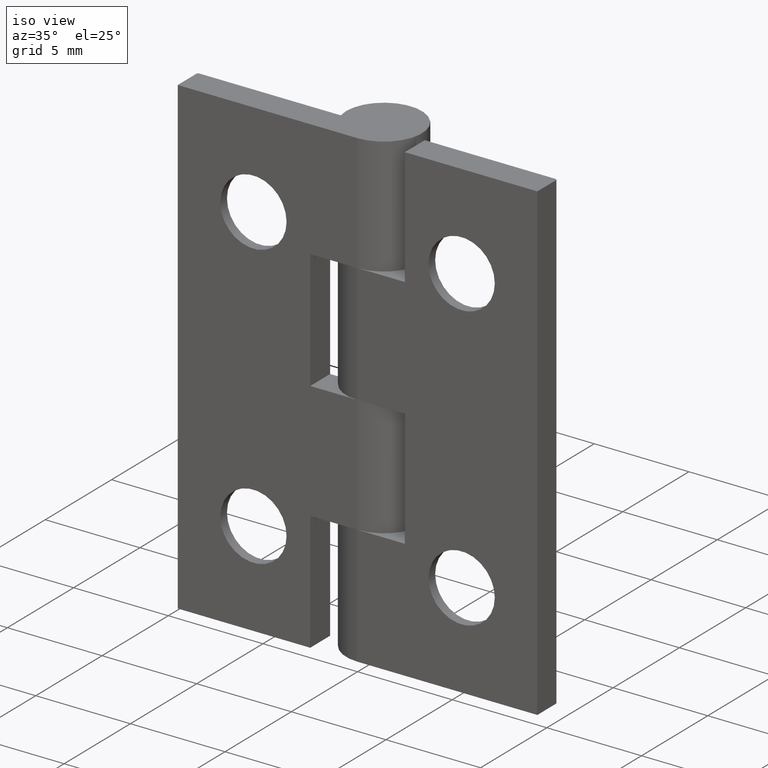
[diagram: clean part render]
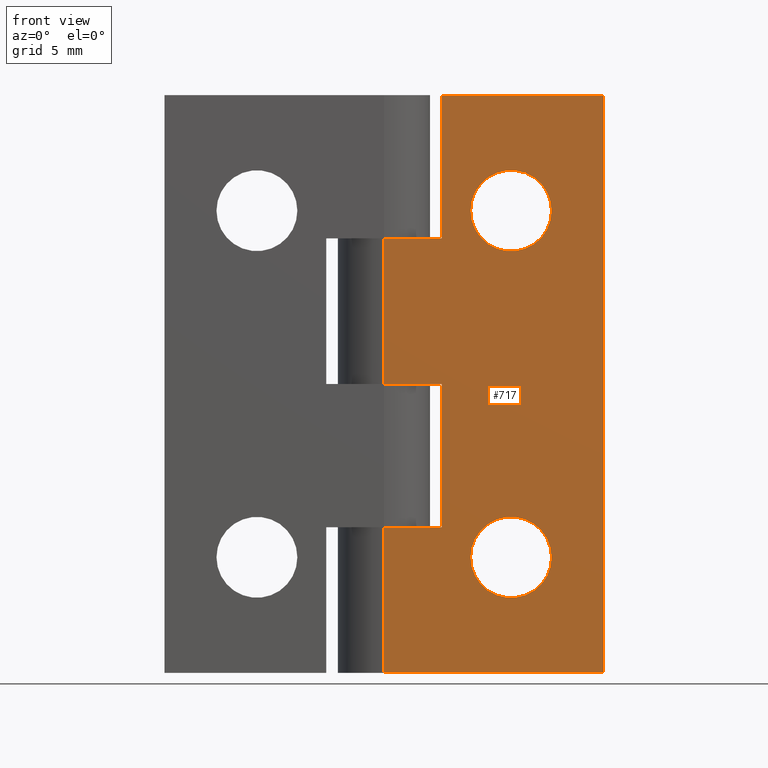
[diagram: tour spotlight — one face highlighted and labeled with its STEP entity id]
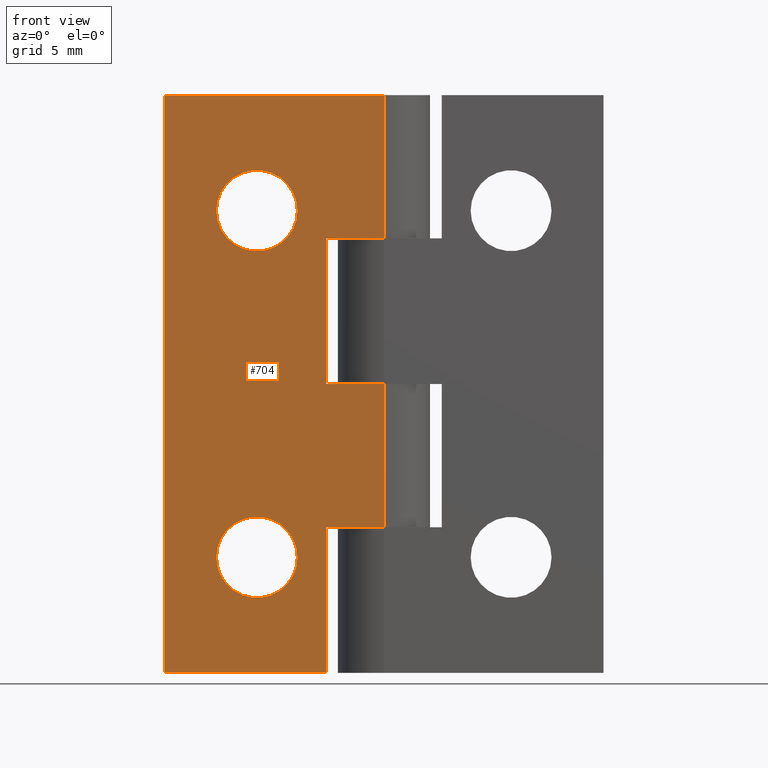
[diagram: tour spotlight — one face highlighted and labeled with its STEP entity id]
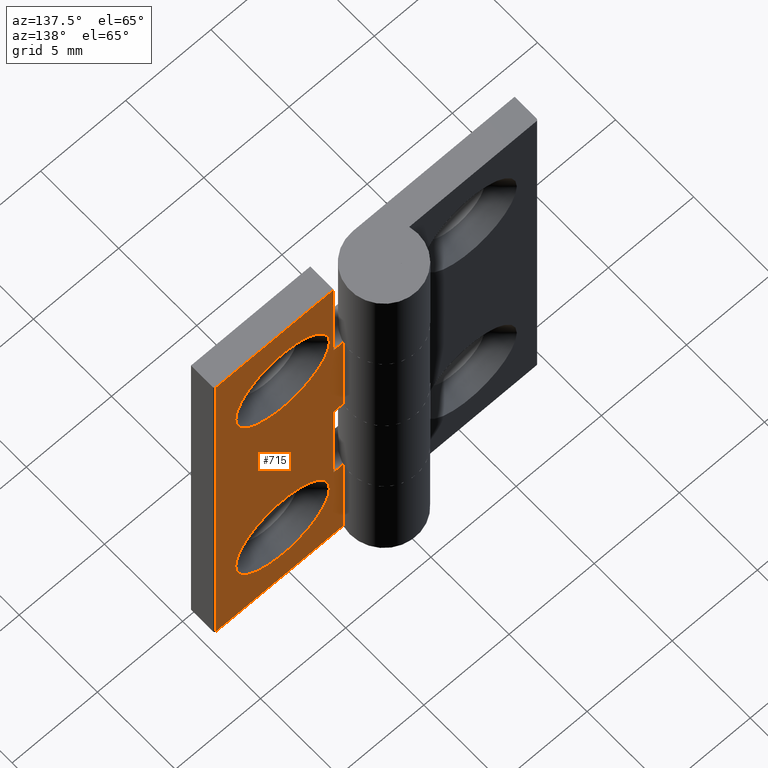
[diagram: tour spotlight — one face highlighted and labeled with its STEP entity id]
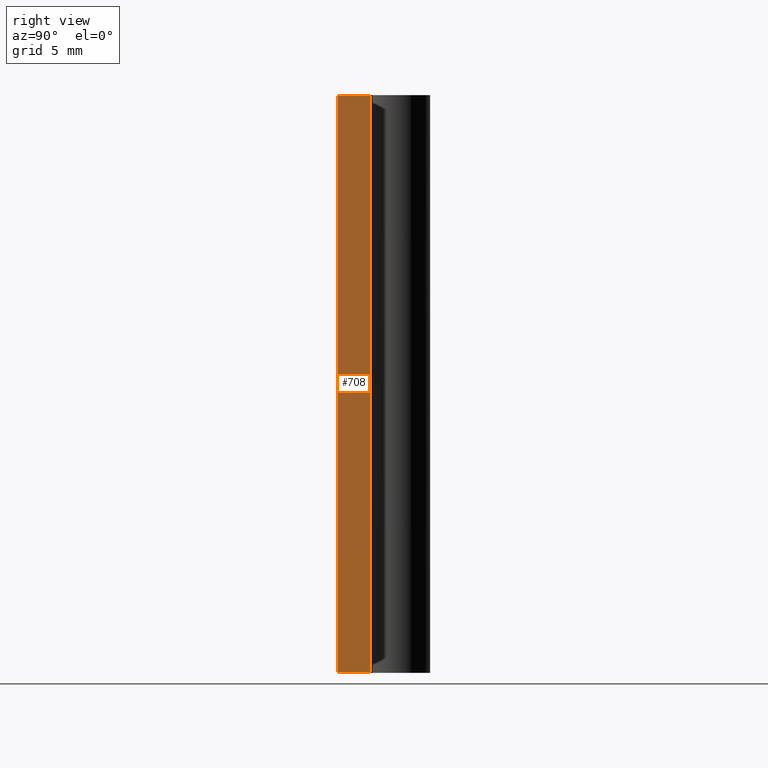
[diagram: tour spotlight — one face highlighted and labeled with its STEP entity id]
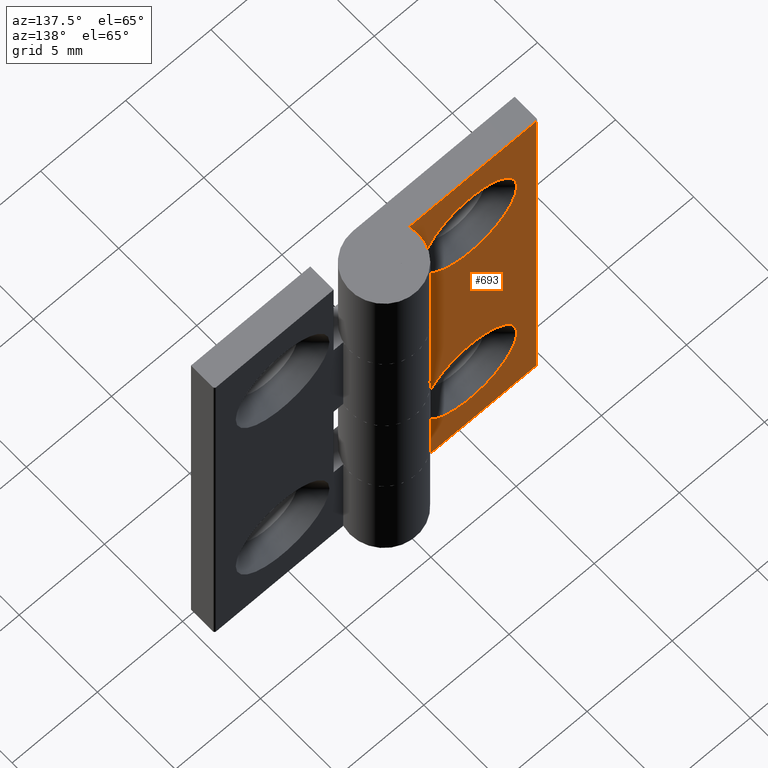
[diagram: tour spotlight — one face highlighted and labeled with its STEP entity id]
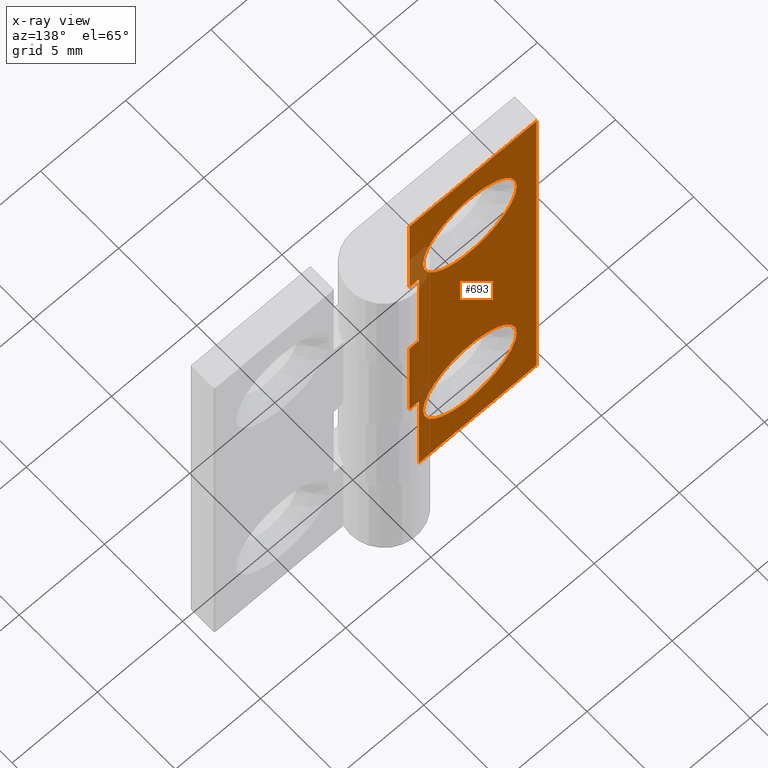
[diagram: x-ray of the same camera — body ghosted, this tour face saturated]
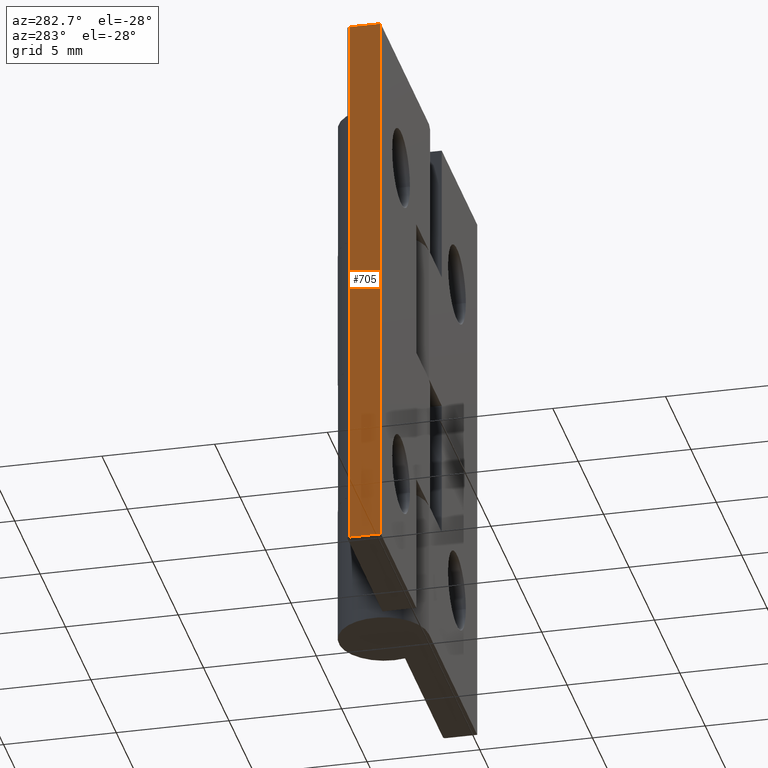
[diagram: tour spotlight — one face highlighted and labeled with its STEP entity id]
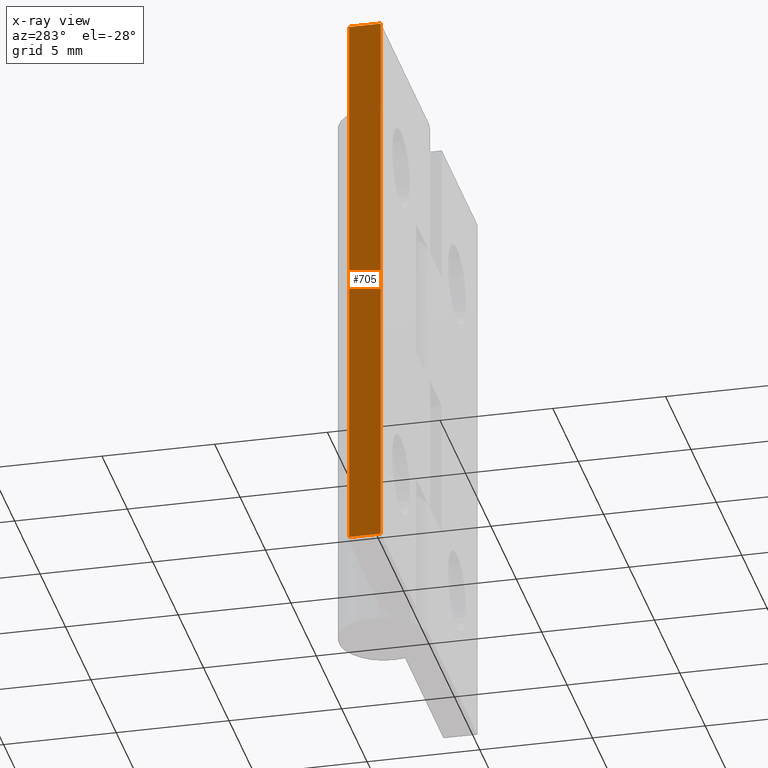
[diagram: x-ray of the same camera — body ghosted, this tour face saturated]
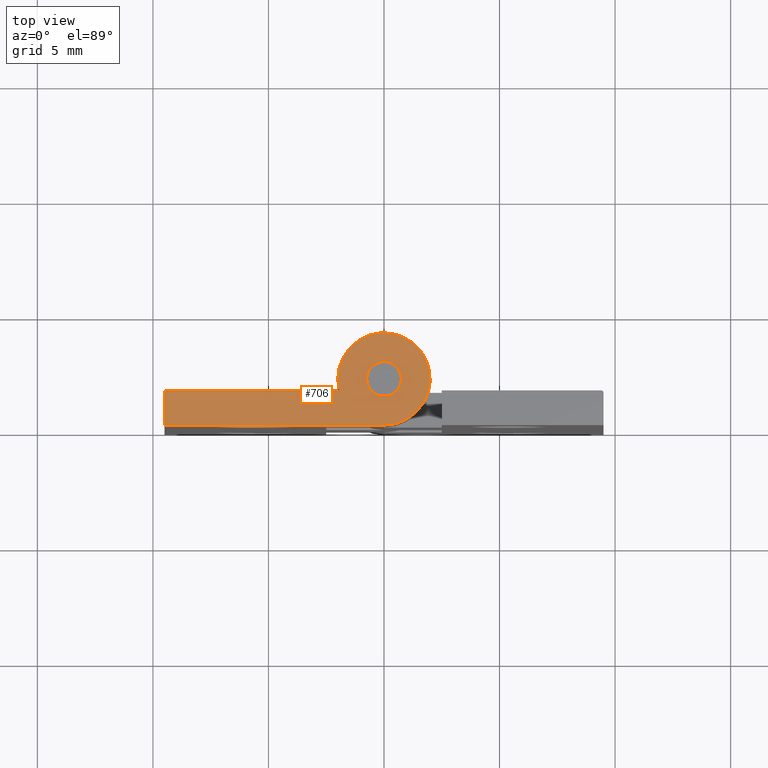
[diagram: tour spotlight — one face highlighted and labeled with its STEP entity id]
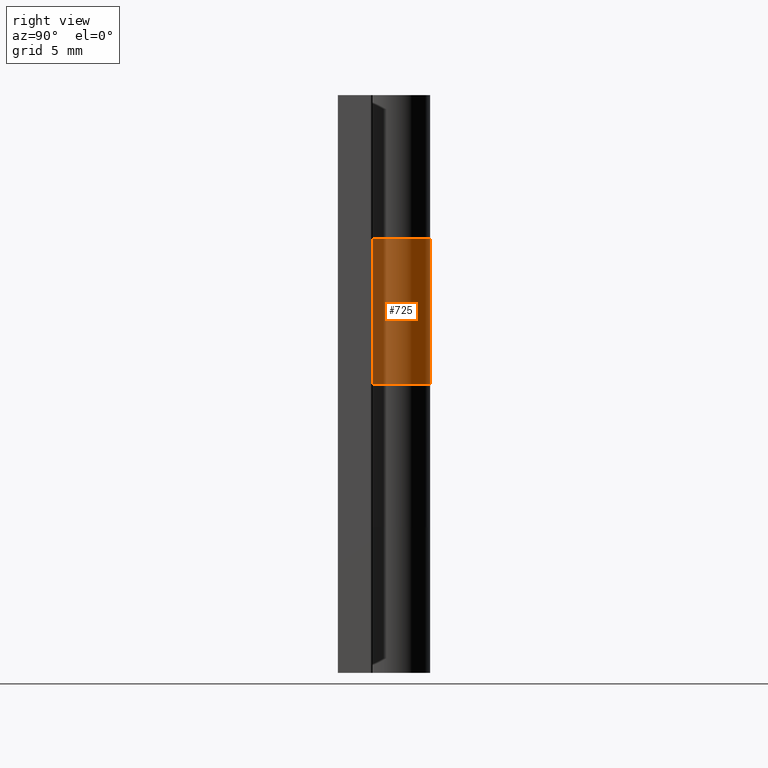
[diagram: tour spotlight — one face highlighted and labeled with its STEP entity id]
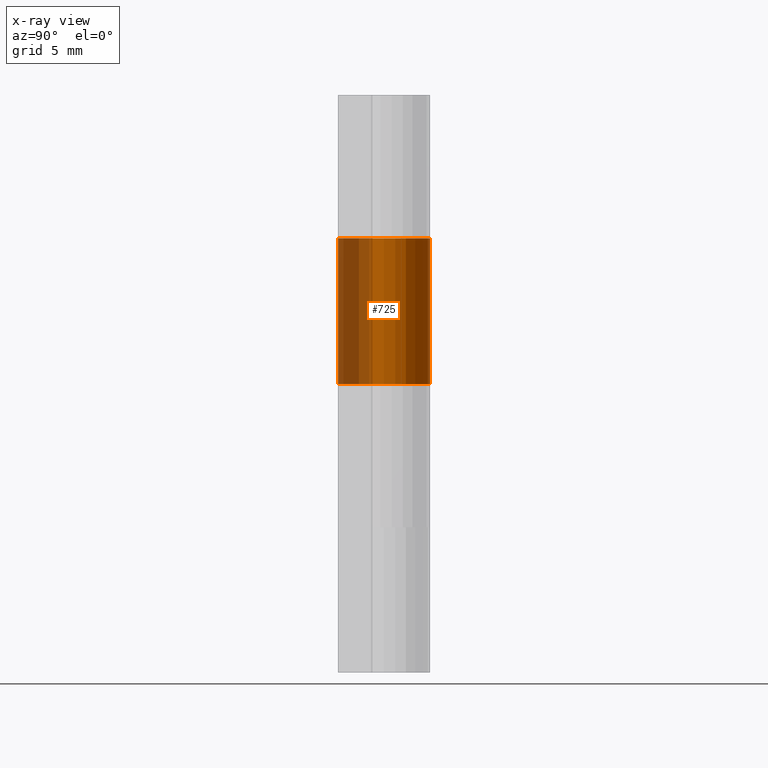
[diagram: x-ray of the same camera — body ghosted, this tour face saturated]
A machine part: a face-by-face anatomy tour. The part has 41 B-rep faces; the first image is the clean iso view, then the 8 largest visible faces are spotlighted one at a time (largest first), each with its STEP entity span.

Face 1 — front view, entity #717. In plain terms, the highlighted planar face has unit normal (0, -1, 0).
Definition (entity closure, byte-faithful):
#73=FACE_BOUND('',#207,.T.);
#74=FACE_BOUND('',#208,.T.);
#110=CIRCLE('',#791,1.75);
#111=CIRCLE('',#792,1.75);
#146=FACE_OUTER_BOUND('',#206,.T.);
#206=EDGE_LOOP('',(#628,#629,#630,#631,#632,#633,#634,#635,#636,#637));
#207=EDGE_LOOP('',(#638));
#208=EDGE_LOOP('',(#639));
#258=LINE('',#1141,#312);
#262=LINE('',#1148,#316);
#265=LINE('',#1154,#319);
#267=LINE('',#1160,#321);
#270=LINE('',#1170,#324);
#272=LINE('',#1181,#326);
#275=LINE('',#1187,#329);
#279=LINE('',#1200,#333);
#280=LINE('',#1202,#334);
#281=LINE('',#1203,#335);
#312=VECTOR('',#926,25.);
#316=VECTOR('',#932,7.);
#319=VECTOR('',#937,6.2);
#321=VECTOR('',#943,2.5);
#324=VECTOR('',#950,2.5);
#326=VECTOR('',#960,2.5);
#329=VECTOR('',#967,6.2);
#333=VECTOR('',#981,6.3);
#334=VECTOR('',#984,6.3);
#335=VECTOR('',#985,9.5);
#372=VERTEX_POINT('',#1138);
#373=VERTEX_POINT('',#1140);
#375=VERTEX_POINT('',#1146);
#377=VERTEX_POINT('',#1152);
#379=VERTEX_POINT('',#1158);
#383=VERTEX_POINT('',#1167);
#384=VERTEX_POINT('',#1169);
#388=VERTEX_POINT('',#1178);
#389=VERTEX_POINT('',#1180);
#394=VERTEX_POINT('',#1198);
#395=VERTEX_POINT('',#1204);
#396=VERTEX_POINT('',#1206);
#450=EDGE_CURVE('',#373,#372,#258,.T.);
#454=EDGE_CURVE('',#375,#372,#262,.T.);
#457=EDGE_CURVE('',#375,#377,#265,.T.);
#460=EDGE_CURVE('',#377,#379,#267,.T.);
#464=EDGE_CURVE('',#384,#383,#270,.T.);
#469=EDGE_CURVE('',#389,#388,#272,.T.);
#473=EDGE_CURVE('',#383,#389,#275,.T.);
#480=EDGE_CURVE('',#394,#388,#279,.T.);
#481=EDGE_CURVE('',#384,#379,#280,.T.);
#482=EDGE_CURVE('',#373,#394,#281,.T.);
#483=EDGE_CURVE('',#395,#395,#110,.T.);
#484=EDGE_CURVE('',#396,#396,#111,.T.);
#628=ORIENTED_EDGE('',*,*,#457,.T.);
#629=ORIENTED_EDGE('',*,*,#460,.T.);
#630=ORIENTED_EDGE('',*,*,#481,.F.);
#631=ORIENTED_EDGE('',*,*,#464,.T.);
#632=ORIENTED_EDGE('',*,*,#473,.T.);
#633=ORIENTED_EDGE('',*,*,#469,.T.);
#634=ORIENTED_EDGE('',*,*,#480,.F.);
#635=ORIENTED_EDGE('',*,*,#482,.F.);
#636=ORIENTED_EDGE('',*,*,#450,.T.);
#637=ORIENTED_EDGE('',*,*,#454,.F.);
#638=ORIENTED_EDGE('',*,*,#483,.T.);
#639=ORIENTED_EDGE('',*,*,#484,.T.);
#684=PLANE('',#790);
#717=ADVANCED_FACE('',(#146,#73,#74),#684,.T.);
#790=AXIS2_PLACEMENT_3D('',#1201,#982,#983);
#791=AXIS2_PLACEMENT_3D('',#1205,#986,#987);
#792=AXIS2_PLACEMENT_3D('',#1207,#988,#989);
#926=DIRECTION('',(0.,0.,1.));
#932=DIRECTION('',(1.,0.,0.));
#937=DIRECTION('',(-2.68602344667377E-16,0.,-1.));
#943=DIRECTION('',(-1.,0.,0.));
#950=DIRECTION('',(1.,0.,-2.46716227694479E-16));
#960=DIRECTION('',(-1.,0.,0.));
#967=DIRECTION('',(-1.79068229778251E-16,0.,-1.));
#981=DIRECTION('',(0.,0.,1.));
#982=DIRECTION('center_axis',(0.,-1.,0.));
#983=DIRECTION('ref_axis',(1.,0.,0.));
#984=DIRECTION('',(0.,0.,1.));
#985=DIRECTION('',(-1.,0.,0.));
#986=DIRECTION('center_axis',(0.,1.,0.));
#987=DIRECTION('ref_axis',(1.,1.1686558153949E-16,0.));
#988=DIRECTION('center_axis',(0.,1.,0.));
#989=DIRECTION('ref_axis',(1.,1.1686558153949E-16,0.));
#1138=CARTESIAN_POINT('',(9.5,0.,12.5));
#1140=CARTESIAN_POINT('',(9.5,0.,-12.5));
#1141=CARTESIAN_POINT('',(9.5,0.,0.));
#1146=CARTESIAN_POINT('',(2.5,0.,12.5));
#1148=CARTESIAN_POINT('',(0.,0.,12.5));
#1152=CARTESIAN_POINT('',(2.5,0.,6.3));
#1154=CARTESIAN_POINT('',(2.5,0.,6.25));
#1158=CARTESIAN_POINT('',(-2.46519032881566E-31,0.,6.3));
#1160=CARTESIAN_POINT('',(1.25,0.,6.3));
#1167=CARTESIAN_POINT('',(2.5,0.,1.11022302462516E-15));
#1169=CARTESIAN_POINT('',(-2.46519032881566E-31,0.,1.72701359386135E-15));
#1170=CARTESIAN_POINT('',(-1.,0.,1.97372982155583E-15));
#1178=CARTESIAN_POINT('',(-2.46519032881566E-31,0.,-6.2));
#1180=CARTESIAN_POINT('',(2.5,0.,-6.2));
#1181=CARTESIAN_POINT('',(1.25,0.,-6.2));
#1187=CARTESIAN_POINT('',(2.5,0.,3.31276225089765E-16));
#1198=CARTESIAN_POINT('',(0.,0.,-12.5));
#1200=CARTESIAN_POINT('',(-2.46519032881566E-31,0.,0.));
#1201=CARTESIAN_POINT('Origin',(0.,0.,0.));
#1202=CARTESIAN_POINT('',(-2.46519032881566E-31,0.,0.));
#1203=CARTESIAN_POINT('',(0.,0.,-12.5));
#1204=CARTESIAN_POINT('',(3.75,-2.04514767694108E-16,7.5));
#1205=CARTESIAN_POINT('Origin',(5.5,0.,7.5));
#1206=CARTESIAN_POINT('',(3.75,-2.04514767694108E-16,-7.5));
#1207=CARTESIAN_POINT('Origin',(5.5,0.,-7.5));

Face 2 — front view, entity #704. In plain terms, the highlighted planar face has unit normal (0, -1, 0).
Definition (entity closure, byte-faithful):
#65=FACE_BOUND('',#186,.T.);
#66=FACE_BOUND('',#187,.T.);
#95=CIRCLE('',#758,1.75);
#97=CIRCLE('',#762,1.75);
#133=FACE_OUTER_BOUND('',#185,.T.);
#185=EDGE_LOOP('',(#554,#555,#556,#557,#558,#559,#560,#561,#562,#563));
#186=EDGE_LOOP('',(#564));
#187=EDGE_LOOP('',(#565));
#230=LINE('',#1040,#284);
#232=LINE('',#1046,#286);
#236=LINE('',#1057,#290);
#238=LINE('',#1068,#292);
#241=LINE('',#1074,#295);
#247=LINE('',#1091,#301);
#248=LINE('',#1093,#302);
#250=LINE('',#1103,#304);
#252=LINE('',#1122,#306);
#253=LINE('',#1123,#307);
#284=VECTOR('',#820,6.30000000000001);
#286=VECTOR('',#826,2.5);
#290=VECTOR('',#834,2.5);
#292=VECTOR('',#844,2.5);
#295=VECTOR('',#851,6.3);
#301=VECTOR('',#867,6.2);
#302=VECTOR('',#870,6.2);
#304=VECTOR('',#882,7.);
#306=VECTOR('',#906,9.5);
#307=VECTOR('',#907,25.);
#338=VERTEX_POINT('',#1037);
#339=VERTEX_POINT('',#1039);
#340=VERTEX_POINT('',#1043);
#345=VERTEX_POINT('',#1054);
#346=VERTEX_POINT('',#1056);
#350=VERTEX_POINT('',#1065);
#351=VERTEX_POINT('',#1067);
#358=VERTEX_POINT('',#1089);
#361=VERTEX_POINT('',#1102);
#363=VERTEX_POINT('',#1109);
#365=VERTEX_POINT('',#1115);
#367=VERTEX_POINT('',#1121);
#404=EDGE_CURVE('',#339,#338,#230,.T.);
#407=EDGE_CURVE('',#338,#340,#232,.T.);
#412=EDGE_CURVE('',#346,#345,#236,.T.);
#417=EDGE_CURVE('',#351,#350,#238,.T.);
#421=EDGE_CURVE('',#345,#351,#241,.T.);
#430=EDGE_CURVE('',#350,#358,#247,.T.);
#431=EDGE_CURVE('',#340,#346,#248,.T.);
#435=EDGE_CURVE('',#339,#361,#250,.T.);
#438=EDGE_CURVE('',#363,#363,#95,.T.);
#440=EDGE_CURVE('',#365,#365,#97,.T.);
#442=EDGE_CURVE('',#367,#358,#252,.T.);
#443=EDGE_CURVE('',#361,#367,#253,.T.);
#554=ORIENTED_EDGE('',*,*,#407,.T.);
#555=ORIENTED_EDGE('',*,*,#431,.T.);
#556=ORIENTED_EDGE('',*,*,#412,.T.);
#557=ORIENTED_EDGE('',*,*,#421,.T.);
#558=ORIENTED_EDGE('',*,*,#417,.T.);
#559=ORIENTED_EDGE('',*,*,#430,.T.);
#560=ORIENTED_EDGE('',*,*,#442,.F.);
#561=ORIENTED_EDGE('',*,*,#443,.F.);
#562=ORIENTED_EDGE('',*,*,#435,.F.);
#563=ORIENTED_EDGE('',*,*,#404,.T.);
#564=ORIENTED_EDGE('',*,*,#438,.T.);
#565=ORIENTED_EDGE('',*,*,#440,.T.);
#673=PLANE('',#765);
#704=ADVANCED_FACE('',(#133,#65,#66),#673,.T.);
#758=AXIS2_PLACEMENT_3D('',#1110,#890,#891);
#762=AXIS2_PLACEMENT_3D('',#1116,#898,#899);
#765=AXIS2_PLACEMENT_3D('',#1120,#904,#905);
#820=DIRECTION('',(1.76225876924628E-16,2.15814456102681E-32,1.));
#826=DIRECTION('',(1.,1.22464679914735E-16,7.40148683083438E-16));
#834=DIRECTION('',(-1.,-1.22464679914735E-16,0.));
#844=DIRECTION('',(1.,1.22464679914735E-16,0.));
#851=DIRECTION('',(1.76225876924628E-16,2.15814456102681E-32,1.));
#867=DIRECTION('',(0.,0.,1.));
#870=DIRECTION('',(0.,0.,1.));
#882=DIRECTION('',(-1.,-1.22464679914735E-16,0.));
#890=DIRECTION('center_axis',(-1.22464679914735E-16,1.,0.));
#891=DIRECTION('ref_axis',(1.,0.,0.));
#898=DIRECTION('center_axis',(-1.22464679914735E-16,1.,0.));
#899=DIRECTION('ref_axis',(1.,0.,0.));
#904=DIRECTION('center_axis',(1.22464679914735E-16,-1.,0.));
#905=DIRECTION('ref_axis',(1.,1.22464679914735E-16,0.));
#906=DIRECTION('',(1.,1.22464679914735E-16,0.));
#907=DIRECTION('',(0.,0.,1.));
#1037=CARTESIAN_POINT('',(-2.5,0.,-6.2));
#1039=CARTESIAN_POINT('',(-2.5,0.,-12.5));
#1040=CARTESIAN_POINT('',(-2.5,-3.06161699786838E-16,-6.25));
#1043=CARTESIAN_POINT('',(0.,0.,-6.2));
#1046=CARTESIAN_POINT('',(-6.,-7.34788079488412E-16,-6.2));
#1054=CARTESIAN_POINT('',(-2.5,0.,3.33066907387547E-15));
#1056=CARTESIAN_POINT('',(0.,0.,3.33066907387547E-15));
#1057=CARTESIAN_POINT('',(-3.75,-4.59242549680258E-16,3.33066907387547E-15));
#1065=CARTESIAN_POINT('',(0.,0.,6.3));
#1067=CARTESIAN_POINT('',(-2.5,0.,6.3));
#1068=CARTESIAN_POINT('',(-6.,-7.34788079488412E-16,6.3));
#1074=CARTESIAN_POINT('',(-2.5,-3.06161699786839E-16,1.04854396770154E-15));
#1089=CARTESIAN_POINT('',(0.,0.,12.5));
#1091=CARTESIAN_POINT('',(0.,0.,0.));
#1093=CARTESIAN_POINT('',(0.,0.,0.));
#1102=CARTESIAN_POINT('',(-9.5,-1.16341445918999E-15,-12.5));
#1103=CARTESIAN_POINT('',(-9.5,-1.16341445918999E-15,-12.5));
#1109=CARTESIAN_POINT('',(-7.25,0.,7.5));
#1110=CARTESIAN_POINT('Origin',(-5.5,0.,7.5));
#1115=CARTESIAN_POINT('',(-7.25,0.,-7.5));
#1116=CARTESIAN_POINT('Origin',(-5.5,0.,-7.5));
#1120=CARTESIAN_POINT('Origin',(-9.5,-1.16341445918999E-15,0.));
#1121=CARTESIAN_POINT('',(-9.5,-1.16341445918999E-15,12.5));
#1122=CARTESIAN_POINT('',(-9.5,-1.16341445918999E-15,12.5));
#1123=CARTESIAN_POINT('',(-9.5,-1.16341445918999E-15,0.));

Face 3 — auxiliary view, entity #715. In plain terms, the highlighted planar face has unit normal (-0, 1, 0).
Definition (entity closure, byte-faithful):
#71=FACE_BOUND('',#203,.T.);
#72=FACE_BOUND('',#204,.T.);
#107=CIRCLE('',#786,2.75);
#108=CIRCLE('',#787,2.75);
#144=FACE_OUTER_BOUND('',#202,.T.);
#202=EDGE_LOOP('',(#612,#613,#614,#615,#616,#617,#618,#619,#620,#621));
#203=EDGE_LOOP('',(#622));
#204=EDGE_LOOP('',(#623));
#256=LINE('',#1136,#310);
#260=LINE('',#1145,#314);
#263=LINE('',#1151,#317);
#266=LINE('',#1157,#320);
#268=LINE('',#1166,#322);
#271=LINE('',#1177,#325);
#274=LINE('',#1186,#328);
#276=LINE('',#1190,#330);
#277=LINE('',#1191,#331);
#278=LINE('',#1192,#332);
#310=VECTOR('',#922,25.);
#314=VECTOR('',#930,6.9);
#317=VECTOR('',#935,6.2);
#320=VECTOR('',#940,0.563508326896295);
#322=VECTOR('',#948,0.563508326896294);
#325=VECTOR('',#957,0.563508326896293);
#328=VECTOR('',#966,6.2);
#330=VECTOR('',#970,7.4635083268963);
#331=VECTOR('',#971,6.3);
#332=VECTOR('',#972,6.3);
#368=VERTEX_POINT('',#1129);
#371=VERTEX_POINT('',#1134);
#374=VERTEX_POINT('',#1144);
#376=VERTEX_POINT('',#1150);
#378=VERTEX_POINT('',#1156);
#381=VERTEX_POINT('',#1164);
#382=VERTEX_POINT('',#1165);
#386=VERTEX_POINT('',#1175);
#387=VERTEX_POINT('',#1176);
#391=VERTEX_POINT('',#1189);
#392=VERTEX_POINT('',#1193);
#393=VERTEX_POINT('',#1195);
#448=EDGE_CURVE('',#371,#368,#256,.T.);
#452=EDGE_CURVE('',#368,#374,#260,.T.);
#455=EDGE_CURVE('',#376,#374,#263,.T.);
#458=EDGE_CURVE('',#378,#376,#266,.T.);
#462=EDGE_CURVE('',#381,#382,#268,.T.);
#467=EDGE_CURVE('',#386,#387,#271,.T.);
#472=EDGE_CURVE('',#387,#381,#274,.T.);
#474=EDGE_CURVE('',#391,#371,#276,.T.);
#475=EDGE_CURVE('',#386,#391,#277,.T.);
#476=EDGE_CURVE('',#378,#382,#278,.T.);
#477=EDGE_CURVE('',#392,#392,#107,.T.);
#478=EDGE_CURVE('',#393,#393,#108,.T.);
#612=ORIENTED_EDGE('',*,*,#448,.F.);
#613=ORIENTED_EDGE('',*,*,#474,.F.);
#614=ORIENTED_EDGE('',*,*,#475,.F.);
#615=ORIENTED_EDGE('',*,*,#467,.T.);
#616=ORIENTED_EDGE('',*,*,#472,.T.);
#617=ORIENTED_EDGE('',*,*,#462,.T.);
#618=ORIENTED_EDGE('',*,*,#476,.F.);
#619=ORIENTED_EDGE('',*,*,#458,.T.);
#620=ORIENTED_EDGE('',*,*,#455,.T.);
#621=ORIENTED_EDGE('',*,*,#452,.F.);
#622=ORIENTED_EDGE('',*,*,#477,.T.);
#623=ORIENTED_EDGE('',*,*,#478,.T.);
#683=PLANE('',#785);
#715=ADVANCED_FACE('',(#144,#71,#72),#683,.T.);
#785=AXIS2_PLACEMENT_3D('',#1188,#968,#969);
#786=AXIS2_PLACEMENT_3D('',#1194,#973,#974);
#787=AXIS2_PLACEMENT_3D('',#1196,#975,#976);
#922=DIRECTION('',(0.,0.,1.));
#930=DIRECTION('',(-1.,-1.1686558153949E-16,0.));
#935=DIRECTION('',(2.68602344667377E-16,3.13903692124235E-32,1.));
#940=DIRECTION('',(1.,1.1686558153949E-16,0.));
#948=DIRECTION('',(-1.,-1.1686558153949E-16,2.46716227694479E-16));
#957=DIRECTION('',(1.,1.1686558153949E-16,0.));
#966=DIRECTION('',(1.79068229778251E-16,2.09269128082823E-32,1.));
#968=DIRECTION('center_axis',(-1.1686558153949E-16,1.,0.));
#969=DIRECTION('ref_axis',(-1.,-1.11022302462516E-16,0.));
#970=DIRECTION('',(1.,1.1686558153949E-16,0.));
#971=DIRECTION('',(0.,0.,-1.));
#972=DIRECTION('',(0.,0.,-1.));
#973=DIRECTION('center_axis',(1.1686558153949E-16,-1.,0.));
#974=DIRECTION('ref_axis',(1.,1.1686558153949E-16,0.));
#975=DIRECTION('center_axis',(1.1686558153949E-16,-1.,0.));
#976=DIRECTION('ref_axis',(1.,1.1686558153949E-16,0.));
#1129=CARTESIAN_POINT('',(9.4,1.5,12.5));
#1134=CARTESIAN_POINT('',(9.4,1.5,-12.5));
#1136=CARTESIAN_POINT('',(9.4,1.5,0.));
#1144=CARTESIAN_POINT('',(2.5,1.5,12.5));
#1145=CARTESIAN_POINT('',(9.5,1.5,12.5));
#1150=CARTESIAN_POINT('',(2.5,1.5,6.3));
#1151=CARTESIAN_POINT('',(2.5,1.5,6.25));
#1156=CARTESIAN_POINT('',(1.9364916731037,1.5,6.3));
#1157=CARTESIAN_POINT('',(6.,1.5,6.3));
#1164=CARTESIAN_POINT('',(2.5,1.5,1.11022302462516E-15));
#1165=CARTESIAN_POINT('',(1.9364916731037,1.5,1.24924967331144E-15));
#1166=CARTESIAN_POINT('',(3.75,1.5,8.01827740007057E-16));
#1175=CARTESIAN_POINT('',(1.9364916731037,1.5,-6.2));
#1176=CARTESIAN_POINT('',(2.5,1.5,-6.2));
#1177=CARTESIAN_POINT('',(6.,1.5,-6.2));
#1186=CARTESIAN_POINT('',(2.5,1.5,1.18185031653646E-15));
#1188=CARTESIAN_POINT('Origin',(9.5,1.5,0.));
#1189=CARTESIAN_POINT('',(1.9364916731037,1.5,-12.5));
#1190=CARTESIAN_POINT('',(9.5,1.5,-12.5));
#1191=CARTESIAN_POINT('',(1.9364916731037,1.5,0.));
#1192=CARTESIAN_POINT('',(1.9364916731037,1.5,0.));
#1193=CARTESIAN_POINT('',(8.25,1.5,7.5));
#1194=CARTESIAN_POINT('Origin',(5.5,1.5,7.5));
#1195=CARTESIAN_POINT('',(8.25,1.5,-7.5));
#1196=CARTESIAN_POINT('Origin',(5.5,1.5,-7.5));

Face 4 — right view, entity #708. In plain terms, the highlighted planar face has unit normal (1, -0, 0).
Definition (entity closure, byte-faithful):
#137=FACE_OUTER_BOUND('',#192,.T.);
#192=EDGE_LOOP('',(#580,#581,#582,#583));
#255=LINE('',#1133,#309);
#257=LINE('',#1139,#311);
#258=LINE('',#1141,#312);
#259=LINE('',#1142,#313);
#309=VECTOR('',#919,25.);
#311=VECTOR('',#925,1.4);
#312=VECTOR('',#926,25.);
#313=VECTOR('',#927,1.4);
#369=VERTEX_POINT('',#1130);
#370=VERTEX_POINT('',#1132);
#372=VERTEX_POINT('',#1138);
#373=VERTEX_POINT('',#1140);
#446=EDGE_CURVE('',#369,#370,#255,.T.);
#449=EDGE_CURVE('',#372,#369,#257,.T.);
#450=EDGE_CURVE('',#373,#372,#258,.T.);
#451=EDGE_CURVE('',#370,#373,#259,.T.);
#580=ORIENTED_EDGE('',*,*,#446,.F.);
#581=ORIENTED_EDGE('',*,*,#449,.F.);
#582=ORIENTED_EDGE('',*,*,#450,.F.);
#583=ORIENTED_EDGE('',*,*,#451,.F.);
#676=PLANE('',#772);
#708=ADVANCED_FACE('',(#137),#676,.T.);
#772=AXIS2_PLACEMENT_3D('',#1137,#923,#924);
#919=DIRECTION('',(0.,0.,-1.));
#923=DIRECTION('center_axis',(1.,-7.40148683083438E-16,0.));
#924=DIRECTION('ref_axis',(7.105427357601E-16,1.,0.));
#925=DIRECTION('',(7.40148683083438E-16,1.,0.));
#926=DIRECTION('',(0.,0.,1.));
#927=DIRECTION('',(-7.40148683083438E-16,-1.,0.));
#1130=CARTESIAN_POINT('',(9.5,1.4,12.5));
#1132=CARTESIAN_POINT('',(9.5,1.4,-12.5));
#1133=CARTESIAN_POINT('',(9.5,1.4,0.));
#1137=CARTESIAN_POINT('Origin',(9.5,0.,0.));
#1138=CARTESIAN_POINT('',(9.5,0.,12.5));
#1139=CARTESIAN_POINT('',(9.5,0.,12.5));
#1140=CARTESIAN_POINT('',(9.5,0.,-12.5));
#1141=CARTESIAN_POINT('',(9.5,0.,0.));
#1142=CARTESIAN_POINT('',(9.5,0.,-12.5));

Face 5 — auxiliary view, entity #693. An x-ray twin of the same camera follows (body ghosted, this face saturated) — the face is partly hidden behind the body. In plain terms, the highlighted planar face has unit normal (0, 1, 0).
Definition (entity closure, byte-faithful):
#57=FACE_BOUND('',#167,.T.);
#58=FACE_BOUND('',#168,.T.);
#89=CIRCLE('',#745,2.75);
#90=CIRCLE('',#746,2.75);
#122=FACE_OUTER_BOUND('',#166,.T.);
#166=EDGE_LOOP('',(#513,#514,#515,#516,#517,#518,#519,#520,#521,#522));
#167=EDGE_LOOP('',(#523));
#168=EDGE_LOOP('',(#524));
#228=LINE('',#1036,#282);
#233=LINE('',#1047,#287);
#234=LINE('',#1053,#288);
#237=LINE('',#1064,#291);
#240=LINE('',#1073,#294);
#242=LINE('',#1077,#296);
#243=LINE('',#1079,#297);
#244=LINE('',#1081,#298);
#245=LINE('',#1082,#299);
#246=LINE('',#1083,#300);
#282=VECTOR('',#818,6.3);
#287=VECTOR('',#827,0.563508326896291);
#288=VECTOR('',#832,0.563508326896296);
#291=VECTOR('',#841,0.563508326896294);
#294=VECTOR('',#850,6.3);
#296=VECTOR('',#854,6.9);
#297=VECTOR('',#855,25.);
#298=VECTOR('',#856,7.46350832689629);
#299=VECTOR('',#857,6.2);
#300=VECTOR('',#858,6.2);
#336=VERTEX_POINT('',#1034);
#337=VERTEX_POINT('',#1035);
#341=VERTEX_POINT('',#1044);
#343=VERTEX_POINT('',#1051);
#344=VERTEX_POINT('',#1052);
#348=VERTEX_POINT('',#1062);
#349=VERTEX_POINT('',#1063);
#353=VERTEX_POINT('',#1076);
#354=VERTEX_POINT('',#1078);
#355=VERTEX_POINT('',#1080);
#356=VERTEX_POINT('',#1084);
#357=VERTEX_POINT('',#1086);
#402=EDGE_CURVE('',#336,#337,#228,.T.);
#408=EDGE_CURVE('',#341,#336,#233,.T.);
#410=EDGE_CURVE('',#343,#344,#234,.T.);
#415=EDGE_CURVE('',#348,#349,#237,.T.);
#420=EDGE_CURVE('',#349,#343,#240,.T.);
#422=EDGE_CURVE('',#353,#337,#242,.T.);
#423=EDGE_CURVE('',#354,#353,#243,.T.);
#424=EDGE_CURVE('',#355,#354,#244,.T.);
#425=EDGE_CURVE('',#348,#355,#245,.T.);
#426=EDGE_CURVE('',#341,#344,#246,.T.);
#427=EDGE_CURVE('',#356,#356,#89,.T.);
#428=EDGE_CURVE('',#357,#357,#90,.T.);
#513=ORIENTED_EDGE('',*,*,#408,.T.);
#514=ORIENTED_EDGE('',*,*,#402,.T.);
#515=ORIENTED_EDGE('',*,*,#422,.F.);
#516=ORIENTED_EDGE('',*,*,#423,.F.);
#517=ORIENTED_EDGE('',*,*,#424,.F.);
#518=ORIENTED_EDGE('',*,*,#425,.F.);
#519=ORIENTED_EDGE('',*,*,#415,.T.);
#520=ORIENTED_EDGE('',*,*,#420,.T.);
#521=ORIENTED_EDGE('',*,*,#410,.T.);
#522=ORIENTED_EDGE('',*,*,#426,.F.);
#523=ORIENTED_EDGE('',*,*,#427,.T.);
#524=ORIENTED_EDGE('',*,*,#428,.T.);
#671=PLANE('',#744);
#693=ADVANCED_FACE('',(#122,#57,#58),#671,.T.);
#744=AXIS2_PLACEMENT_3D('',#1075,#852,#853);
#745=AXIS2_PLACEMENT_3D('',#1085,#859,#860);
#746=AXIS2_PLACEMENT_3D('',#1087,#861,#862);
#818=DIRECTION('',(-1.76225876924628E-16,0.,-1.));
#827=DIRECTION('',(-1.,0.,-7.40148683083438E-16));
#832=DIRECTION('',(1.,0.,0.));
#841=DIRECTION('',(-1.,0.,0.));
#850=DIRECTION('',(-1.76225876924628E-16,0.,-1.));
#852=DIRECTION('center_axis',(0.,1.,0.));
#853=DIRECTION('ref_axis',(-1.,0.,0.));
#854=DIRECTION('',(1.,0.,0.));
#855=DIRECTION('',(0.,0.,-1.));
#856=DIRECTION('',(-1.,0.,0.));
#857=DIRECTION('',(0.,0.,1.));
#858=DIRECTION('',(0.,0.,1.));
#859=DIRECTION('center_axis',(0.,-1.,0.));
#860=DIRECTION('ref_axis',(1.,0.,0.));
#861=DIRECTION('center_axis',(0.,-1.,0.));
#862=DIRECTION('ref_axis',(1.,0.,0.));
#1034=CARTESIAN_POINT('',(-2.5,1.5,-6.2));
#1035=CARTESIAN_POINT('',(-2.5,1.5,-12.5));
#1036=CARTESIAN_POINT('',(-2.5,1.5,-6.25));
#1044=CARTESIAN_POINT('',(-1.93649167310371,1.5,-6.2));
#1047=CARTESIAN_POINT('',(-1.25,1.5,-6.2));
#1051=CARTESIAN_POINT('',(-2.5,1.5,3.33066907387547E-15));
#1052=CARTESIAN_POINT('',(-1.93649167310371,1.5,3.33066907387547E-15));
#1053=CARTESIAN_POINT('',(1.,1.5,3.33066907387547E-15));
#1062=CARTESIAN_POINT('',(-1.93649167310371,1.5,6.3));
#1063=CARTESIAN_POINT('',(-2.5,1.5,6.3));
#1064=CARTESIAN_POINT('',(-1.25,1.5,6.3));
#1073=CARTESIAN_POINT('',(-2.5,1.5,1.88561688309352E-15));
#1075=CARTESIAN_POINT('Origin',(-5.30941427315699E-18,1.5,0.));
#1076=CARTESIAN_POINT('',(-9.4,1.5,-12.5));
#1077=CARTESIAN_POINT('',(0.,1.5,-12.5));
#1078=CARTESIAN_POINT('',(-9.4,1.5,12.5));
#1079=CARTESIAN_POINT('',(-9.4,1.5,0.));
#1080=CARTESIAN_POINT('',(-1.93649167310371,1.5,12.5));
#1081=CARTESIAN_POINT('',(0.,1.5,12.5));
#1082=CARTESIAN_POINT('',(-1.93649167310371,1.5,0.));
#1083=CARTESIAN_POINT('',(-1.93649167310371,1.5,0.));
#1084=CARTESIAN_POINT('',(-2.75,1.5,7.5));
#1085=CARTESIAN_POINT('Origin',(-5.5,1.5,7.5));
#1086=CARTESIAN_POINT('',(-2.75,1.5,-7.5));
#1087=CARTESIAN_POINT('Origin',(-5.5,1.5,-7.5));

Face 6 — auxiliary view, entity #705. An x-ray twin of the same camera follows (body ghosted, this face saturated) — the face is partly hidden behind the body. In plain terms, the highlighted planar face has unit normal (-1, 0, 0).
Definition (entity closure, byte-faithful):
#134=FACE_OUTER_BOUND('',#188,.T.);
#188=EDGE_LOOP('',(#566,#567,#568,#569));
#249=LINE('',#1100,#303);
#251=LINE('',#1104,#305);
#253=LINE('',#1123,#307);
#254=LINE('',#1125,#308);
#303=VECTOR('',#879,25.);
#305=VECTOR('',#883,1.4);
#307=VECTOR('',#907,25.);
#308=VECTOR('',#910,1.4);
#359=VERTEX_POINT('',#1096);
#360=VERTEX_POINT('',#1098);
#361=VERTEX_POINT('',#1102);
#367=VERTEX_POINT('',#1121);
#434=EDGE_CURVE('',#360,#359,#249,.T.);
#436=EDGE_CURVE('',#361,#360,#251,.T.);
#443=EDGE_CURVE('',#361,#367,#253,.T.);
#444=EDGE_CURVE('',#359,#367,#254,.T.);
#566=ORIENTED_EDGE('',*,*,#434,.F.);
#567=ORIENTED_EDGE('',*,*,#436,.F.);
#568=ORIENTED_EDGE('',*,*,#443,.T.);
#569=ORIENTED_EDGE('',*,*,#444,.F.);
#674=PLANE('',#766);
#705=ADVANCED_FACE('',(#134),#674,.T.);
#766=AXIS2_PLACEMENT_3D('',#1124,#908,#909);
#879=DIRECTION('',(0.,0.,1.));
#883=DIRECTION('',(0.,1.,0.));
#907=DIRECTION('',(0.,0.,1.));
#908=DIRECTION('center_axis',(-1.,0.,0.));
#909=DIRECTION('ref_axis',(0.,-1.,0.));
#910=DIRECTION('',(0.,-1.,0.));
#1096=CARTESIAN_POINT('',(-9.5,1.4,12.5));
#1098=CARTESIAN_POINT('',(-9.5,1.4,-12.5));
#1100=CARTESIAN_POINT('',(-9.5,1.4,0.));
#1102=CARTESIAN_POINT('',(-9.5,-1.16341445918999E-15,-12.5));
#1104=CARTESIAN_POINT('',(-9.5,1.5,-12.5));
#1121=CARTESIAN_POINT('',(-9.5,-1.16341445918999E-15,12.5));
#1123=CARTESIAN_POINT('',(-9.5,-1.16341445918999E-15,0.));
#1124=CARTESIAN_POINT('Origin',(-9.5,1.5,0.));
#1125=CARTESIAN_POINT('',(-9.5,1.5,12.5));

Face 7 — top view, entity #706. In plain terms, the highlighted planar face has unit normal (0, 0, 1).
Definition (entity closure, byte-faithful):
#67=FACE_BOUND('',#190,.T.);
#91=CIRCLE('',#748,2.);
#92=CIRCLE('',#752,0.1);
#98=CIRCLE('',#764,0.75);
#135=FACE_OUTER_BOUND('',#189,.T.);
#189=EDGE_LOOP('',(#570,#571,#572,#573,#574));
#190=EDGE_LOOP('',(#575));
#244=LINE('',#1081,#298);
#252=LINE('',#1122,#306);
#254=LINE('',#1125,#308);
#298=VECTOR('',#856,7.46350832689629);
#306=VECTOR('',#906,9.5);
#308=VECTOR('',#910,1.4);
#354=VERTEX_POINT('',#1078);
#355=VERTEX_POINT('',#1080);
#358=VERTEX_POINT('',#1089);
#359=VERTEX_POINT('',#1096);
#366=VERTEX_POINT('',#1118);
#367=VERTEX_POINT('',#1121);
#424=EDGE_CURVE('',#355,#354,#244,.T.);
#429=EDGE_CURVE('',#358,#355,#91,.T.);
#432=EDGE_CURVE('',#359,#354,#92,.T.);
#441=EDGE_CURVE('',#366,#366,#98,.T.);
#442=EDGE_CURVE('',#367,#358,#252,.T.);
#444=EDGE_CURVE('',#359,#367,#254,.T.);
#570=ORIENTED_EDGE('',*,*,#432,.F.);
#571=ORIENTED_EDGE('',*,*,#444,.T.);
#572=ORIENTED_EDGE('',*,*,#442,.T.);
#573=ORIENTED_EDGE('',*,*,#429,.T.);
#574=ORIENTED_EDGE('',*,*,#424,.T.);
#575=ORIENTED_EDGE('',*,*,#441,.T.);
#675=PLANE('',#767);
#706=ADVANCED_FACE('',(#135,#67),#675,.T.);
#748=AXIS2_PLACEMENT_3D('',#1090,#865,#866);
#752=AXIS2_PLACEMENT_3D('',#1097,#875,#876);
#764=AXIS2_PLACEMENT_3D('',#1119,#902,#903);
#767=AXIS2_PLACEMENT_3D('',#1126,#911,#912);
#856=DIRECTION('',(-1.,0.,0.));
#865=DIRECTION('center_axis',(0.,0.,1.));
#866=DIRECTION('ref_axis',(-1.,0.,0.));
#875=DIRECTION('center_axis',(0.,0.,-1.));
#876=DIRECTION('ref_axis',(-0.707106781186548,0.707106781186548,0.));
#902=DIRECTION('center_axis',(0.,0.,-1.));
#903=DIRECTION('ref_axis',(-1.,0.,0.));
#906=DIRECTION('',(1.,1.22464679914735E-16,0.));
#910=DIRECTION('',(0.,-1.,0.));
#911=DIRECTION('center_axis',(0.,0.,1.));
#912=DIRECTION('ref_axis',(1.,0.,0.));
#1078=CARTESIAN_POINT('',(-9.4,1.5,12.5));
#1080=CARTESIAN_POINT('',(-1.93649167310371,1.5,12.5));
#1081=CARTESIAN_POINT('',(0.,1.5,12.5));
#1089=CARTESIAN_POINT('',(0.,0.,12.5));
#1090=CARTESIAN_POINT('Origin',(0.,2.,12.5));
#1096=CARTESIAN_POINT('',(-9.5,1.4,12.5));
#1097=CARTESIAN_POINT('Origin',(-9.4,1.4,12.5));
#1118=CARTESIAN_POINT('',(0.75,2.,12.5));
#1119=CARTESIAN_POINT('Origin',(0.,2.,12.5));
#1121=CARTESIAN_POINT('',(-9.5,-1.16341445918999E-15,12.5));
#1122=CARTESIAN_POINT('',(-9.5,-1.16341445918999E-15,12.5));
#1125=CARTESIAN_POINT('',(-9.5,1.5,12.5));
#1126=CARTESIAN_POINT('Origin',(-4.75,0.749999999999999,12.5));

Face 8 — right view, entity #725. An x-ray twin of the same camera follows (body ghosted, this face saturated) — the face is partly hidden behind the body. In plain terms, the highlighted cylindrical surface (partial cylindrical patch) has radius 2 mm, axis along (0, 0, 1).
Definition (entity closure, byte-faithful):
#52=CYLINDRICAL_SURFACE('',#803,2.);
#101=CIRCLE('',#776,2.);
#103=CIRCLE('',#779,2.);
#154=FACE_OUTER_BOUND('',#223,.T.);
#223=EDGE_LOOP('',(#658,#659,#660,#661));
#278=LINE('',#1192,#332);
#280=LINE('',#1202,#334);
#332=VECTOR('',#972,6.3);
#334=VECTOR('',#984,6.3);
#378=VERTEX_POINT('',#1156);
#379=VERTEX_POINT('',#1158);
#382=VERTEX_POINT('',#1165);
#384=VERTEX_POINT('',#1169);
#459=EDGE_CURVE('',#379,#378,#101,.T.);
#465=EDGE_CURVE('',#382,#384,#103,.T.);
#476=EDGE_CURVE('',#378,#382,#278,.T.);
#481=EDGE_CURVE('',#384,#379,#280,.T.);
#658=ORIENTED_EDGE('',*,*,#459,.T.);
#659=ORIENTED_EDGE('',*,*,#476,.T.);
#660=ORIENTED_EDGE('',*,*,#465,.T.);
#661=ORIENTED_EDGE('',*,*,#481,.T.);
#725=ADVANCED_FACE('',(#154),#52,.T.);
#776=AXIS2_PLACEMENT_3D('',#1159,#941,#942);
#779=AXIS2_PLACEMENT_3D('',#1171,#951,#952);
#803=AXIS2_PLACEMENT_3D('',#1221,#1010,#1011);
#941=DIRECTION('center_axis',(0.,0.,-1.));
#942=DIRECTION('ref_axis',(-1.,0.,0.));
#951=DIRECTION('center_axis',(2.46716227694479E-16,0.,1.));
#952=DIRECTION('ref_axis',(-1.,0.,0.));
#972=DIRECTION('',(0.,0.,-1.));
#984=DIRECTION('',(0.,0.,1.));
#1010=DIRECTION('center_axis',(0.,0.,1.));
#1011=DIRECTION('ref_axis',(-1.,0.,0.));
#1156=CARTESIAN_POINT('',(1.9364916731037,1.5,6.3));
#1158=CARTESIAN_POINT('',(-2.46519032881566E-31,0.,6.3));
#1159=CARTESIAN_POINT('Origin',(-3.33066907387547E-15,2.,6.3));
#1165=CARTESIAN_POINT('',(1.9364916731037,1.5,1.24924967331144E-15));
#1169=CARTESIAN_POINT('',(-2.46519032881566E-31,0.,1.72701359386135E-15));
#1171=CARTESIAN_POINT('Origin',(-3.33066907387547E-15,2.,2.22044604925031E-15));
#1192=CARTESIAN_POINT('',(1.9364916731037,1.5,0.));
#1202=CARTESIAN_POINT('',(-2.46519032881566E-31,0.,0.));
#1221=CARTESIAN_POINT('Origin',(-3.33066907387547E-15,2.,0.));